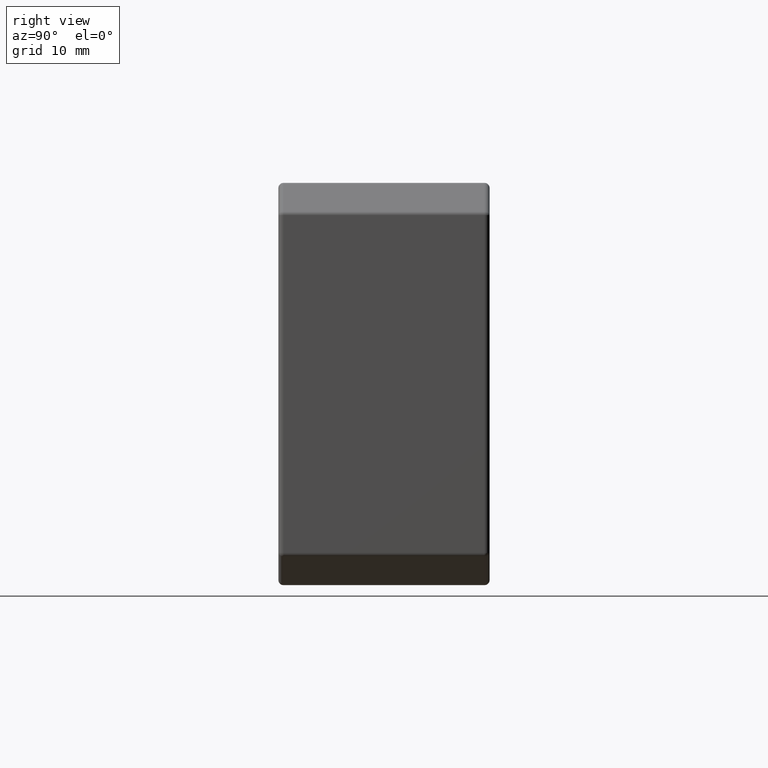
[diagram: clean part render]
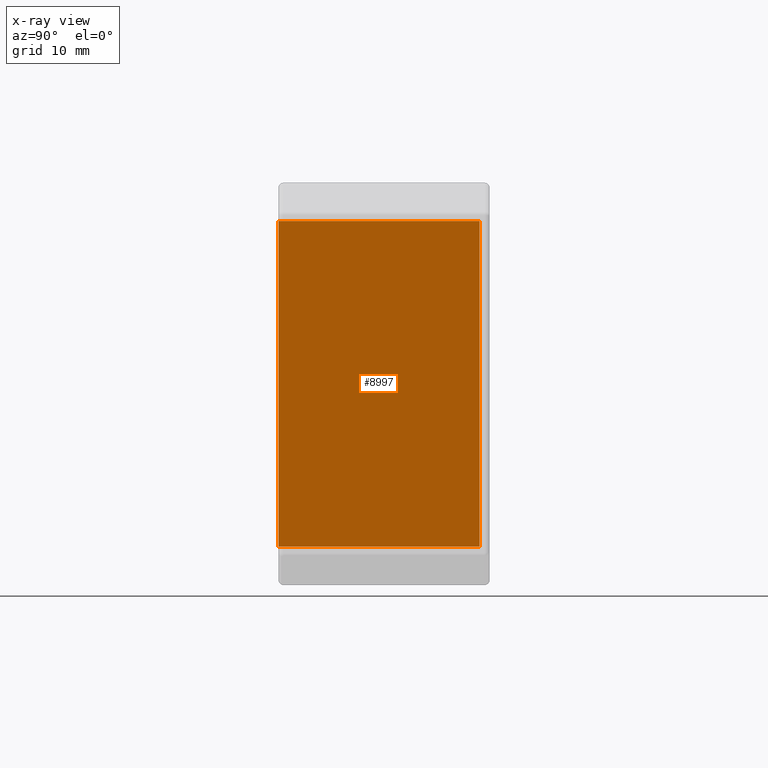
[diagram: x-ray — body ghosted, one internal face saturated and labeled with its STEP entity id]
A machine part, right view, then the same camera in x-ray: the body is ghosted and one INTERNAL B-rep face — a face not visible from any outside direction — is saturated and labeled: STEP entity #8997.
In plain terms, the highlighted planar face has unit normal (1, 0, 0).
Its self-contained STEP definition (entity closure, byte-faithful):
#261=PLANE('',#9822);
#422=LINE('',#13910,#1136);
#880=LINE('',#16639,#1594);
#889=LINE('',#16656,#1603);
#890=LINE('',#16658,#1604);
#1136=VECTOR('',#10295,32.4);
#1594=VECTOR('',#11969,32.4);
#1603=VECTOR('',#11990,20.);
#1604=VECTOR('',#11993,20.);
#2416=FACE_OUTER_BOUND('',#2991,.T.);
#2991=EDGE_LOOP('',(#7819,#7820,#7821,#7822));
#3812=VERTEX_POINT('',#13895);
#3819=VERTEX_POINT('',#13908);
#4315=VERTEX_POINT('',#16636);
#4316=VERTEX_POINT('',#16638);
#4649=EDGE_CURVE('',#3819,#3812,#422,.T.);
#5520=EDGE_CURVE('',#4316,#4315,#880,.T.);
#5530=EDGE_CURVE('',#3812,#4315,#889,.T.);
#5531=EDGE_CURVE('',#3819,#4316,#890,.T.);
#7819=ORIENTED_EDGE('',*,*,#4649,.F.);
#7820=ORIENTED_EDGE('',*,*,#5531,.T.);
#7821=ORIENTED_EDGE('',*,*,#5520,.T.);
#7822=ORIENTED_EDGE('',*,*,#5530,.F.);
#8997=ADVANCED_FACE('',(#2416),#261,.F.);
#9822=AXIS2_PLACEMENT_3D('',#16657,#11991,#11992);
#10295=DIRECTION('',(0.,0.,-1.));
#11969=DIRECTION('',(0.,0.,-1.));
#11990=DIRECTION('',(0.,1.,0.));
#11991=DIRECTION('center_axis',(1.,0.,0.));
#11992=DIRECTION('ref_axis',(0.,0.,-1.));
#11993=DIRECTION('',(0.,1.,0.));
#13895=CARTESIAN_POINT('',(56.,1.02870331128378E-14,-16.2));
#13908=CARTESIAN_POINT('',(56.,1.02870331128378E-14,16.2));
#13910=CARTESIAN_POINT('',(56.,1.02870331128378E-14,8.1));
#16636=CARTESIAN_POINT('',(56.,20.,-16.2));
#16638=CARTESIAN_POINT('',(56.,20.,16.2));
#16639=CARTESIAN_POINT('',(56.,20.,-16.2));
#16656=CARTESIAN_POINT('',(56.,1.02870331128378E-14,-16.2));
#16657=CARTESIAN_POINT('Origin',(56.,1.02870331128378E-14,16.2));
#16658=CARTESIAN_POINT('',(56.,1.02870331128378E-14,16.2));